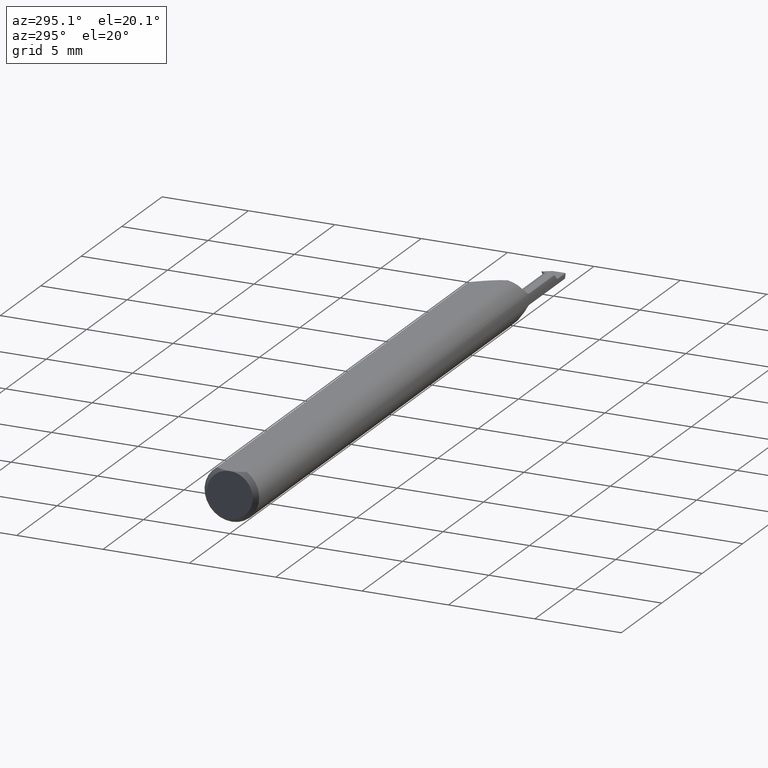
[diagram: clean part render]
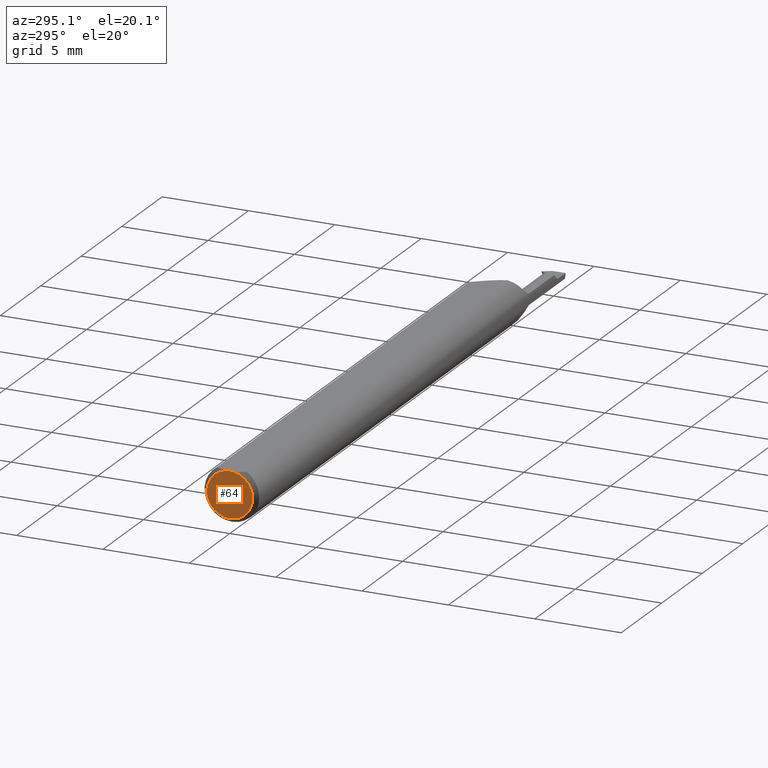
[diagram: same view with one face highlighted and labeled with its STEP entity id]
A machine part, auxiliary view. The second image highlights one B-rep face of the part: STEP entity #64.
In plain terms, the highlighted planar face has unit normal (1, 0, 0).
Its self-contained STEP definition (entity closure, byte-faithful):
#17 = FACE_OUTER_BOUND ( 'NONE', #882, .T. ) ;
#64 = ADVANCED_FACE ( 'NONE', ( #17 ), #689, .F. ) ;
#103 = AXIS2_PLACEMENT_3D ( 'NONE', #321, #107, #164 ) ;
#107 = DIRECTION ( 'NONE',  ( -1.000000000000000000, -0.000000000000000000, -0.000000000000000000 ) ) ;
#119 = CARTESIAN_POINT ( 'NONE',  ( 0.000000000000000000, 0.000000000000000000, 0.000000000000000000 ) ) ;
#164 = DIRECTION ( 'NONE',  ( 0.000000000000000000, 0.000000000000000000, -1.000000000000000000 ) ) ;
#197 = DIRECTION ( 'NONE',  ( -1.000000000000000000, -0.000000000000000000, -0.000000000000000000 ) ) ;
#283 = EDGE_CURVE ( 'NONE', #440, #396, #352, .T. ) ;
#321 = CARTESIAN_POINT ( 'NONE',  ( 0.000000000000000000, 0.000000000000000000, 0.000000000000000000 ) ) ;
#352 = CIRCLE ( 'NONE', #904, 0.05235000000000033377 ) ;
#354 = CARTESIAN_POINT ( 'NONE',  ( 0.000000000000000000, 0.000000000000000000, -0.05235000000000033377 ) ) ;
#372 = ORIENTED_EDGE ( 'NONE', *, *, #475, .T. ) ;
#396 = VERTEX_POINT ( 'NONE', #354 ) ;
#423 = ORIENTED_EDGE ( 'NONE', *, *, #283, .T. ) ;
#430 = AXIS2_PLACEMENT_3D ( 'NONE', #611, #903, #538 ) ;
#440 = VERTEX_POINT ( 'NONE', #877 ) ;
#475 = EDGE_CURVE ( 'NONE', #396, #440, #849, .T. ) ;
#490 = DIRECTION ( 'NONE',  ( 0.000000000000000000, 0.000000000000000000, -1.000000000000000000 ) ) ;
#538 = DIRECTION ( 'NONE',  ( 0.000000000000000000, 0.000000000000000000, -1.000000000000000000 ) ) ;
#611 = CARTESIAN_POINT ( 'NONE',  ( 0.000000000000000000, 0.000000000000000000, 0.000000000000000000 ) ) ;
#689 = PLANE ( 'NONE',  #430 ) ;
#849 = CIRCLE ( 'NONE', #103, 0.05235000000000033377 ) ;
#877 = CARTESIAN_POINT ( 'NONE',  ( 0.000000000000000000, 0.000000000000000000, 0.05234999999999997294 ) ) ;
#882 = EDGE_LOOP ( 'NONE', ( #423, #372 ) ) ;
#903 = DIRECTION ( 'NONE',  ( 1.000000000000000000, 0.000000000000000000, 0.000000000000000000 ) ) ;
#904 = AXIS2_PLACEMENT_3D ( 'NONE', #119, #197, #490 ) ;